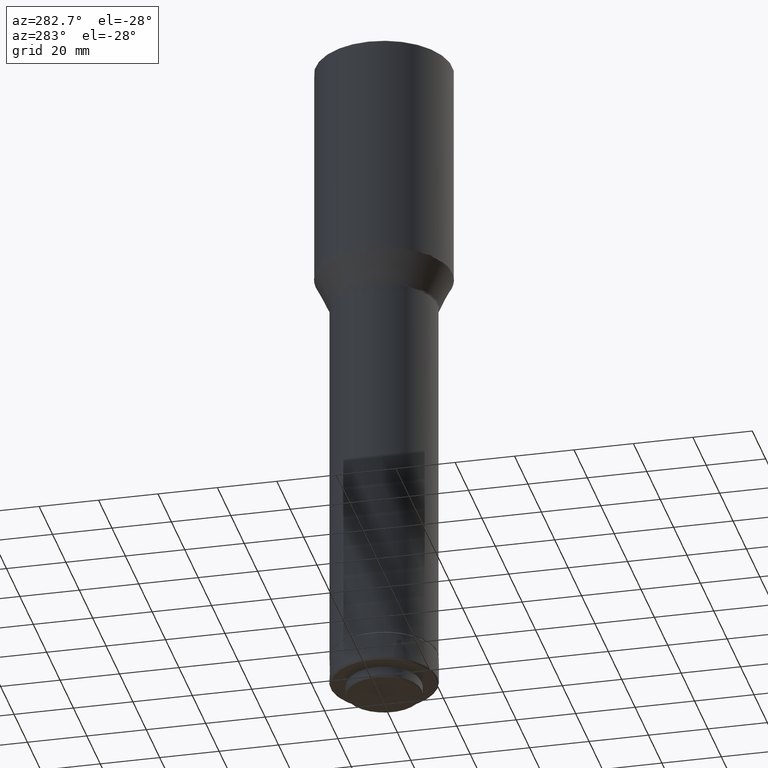
[diagram: clean part render]
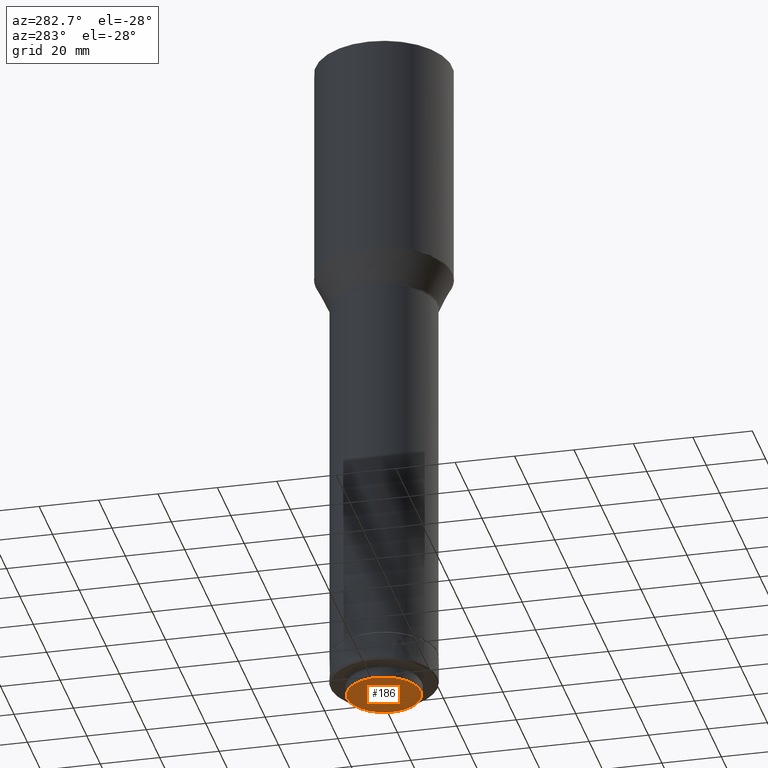
[diagram: same view with one face highlighted and labeled with its STEP entity id]
A machine part, auxiliary view. The second image highlights one B-rep face of the part: STEP entity #186.
In plain terms, the highlighted planar face has unit normal (-0, 0, 1).
Its self-contained STEP definition (entity closure, byte-faithful):
#52 = EDGE_LOOP ( 'NONE', ( #439 ) ) ;
#100 = PLANE ( 'NONE',  #811 ) ;
#186 = ADVANCED_FACE ( 'NONE', ( #822 ), #100, .F. ) ;
#202 = CARTESIAN_POINT ( 'NONE',  ( 6.938893903907228378E-15, -12.40000000000011049, -687.1559999999999491 ) ) ;
#366 = DIRECTION ( 'NONE',  ( -1.194078953677995798E-30, -4.370956789862825094E-15, 1.000000000000000000 ) ) ;
#438 = CARTESIAN_POINT ( 'NONE',  ( 6.938893903907228378E-15, -1.110100273989989670E-13, -687.1559999999999491 ) ) ;
#439 = ORIENTED_EDGE ( 'NONE', *, *, #647, .F. ) ;
#459 = CIRCLE ( 'NONE', #477, 12.40000000000000036 ) ;
#477 = AXIS2_PLACEMENT_3D ( 'NONE', #438, #366, #831 ) ;
#493 = DIRECTION ( 'NONE',  ( -4.214419204763384871E-32, 3.224403732347684925E-17, 1.000000000000000000 ) ) ;
#537 = VERTEX_POINT ( 'NONE', #202 ) ;
#553 = CARTESIAN_POINT ( 'NONE',  ( 7.898505440404388110E-15, 10.74999999999988098, -687.1559999999999491 ) ) ;
#647 = EDGE_CURVE ( 'NONE', #537, #537, #459, .T. ) ;
#758 = DIRECTION ( 'NONE',  ( 0.000000000000000000, -1.000000000000000000, 3.224403732347684925E-17 ) ) ;
#811 = AXIS2_PLACEMENT_3D ( 'NONE', #553, #493, #758 ) ;
#822 = FACE_OUTER_BOUND ( 'NONE', #52, .T. ) ;
#831 = DIRECTION ( 'NONE',  ( 0.000000000000000000, -1.000000000000000000, 0.000000000000000000 ) ) ;